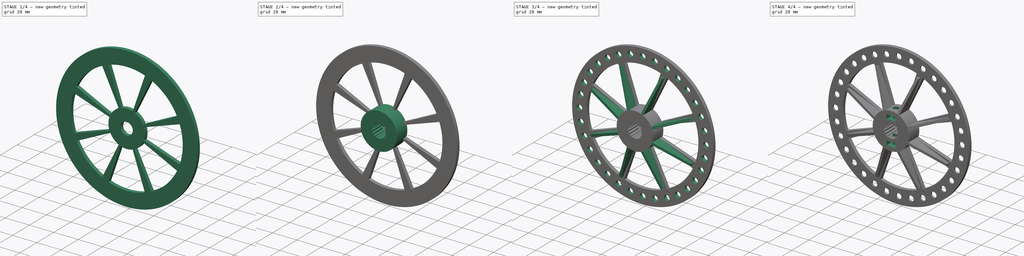
[diagram: build sequence overview — one tinted view per stage of 4, left to right]
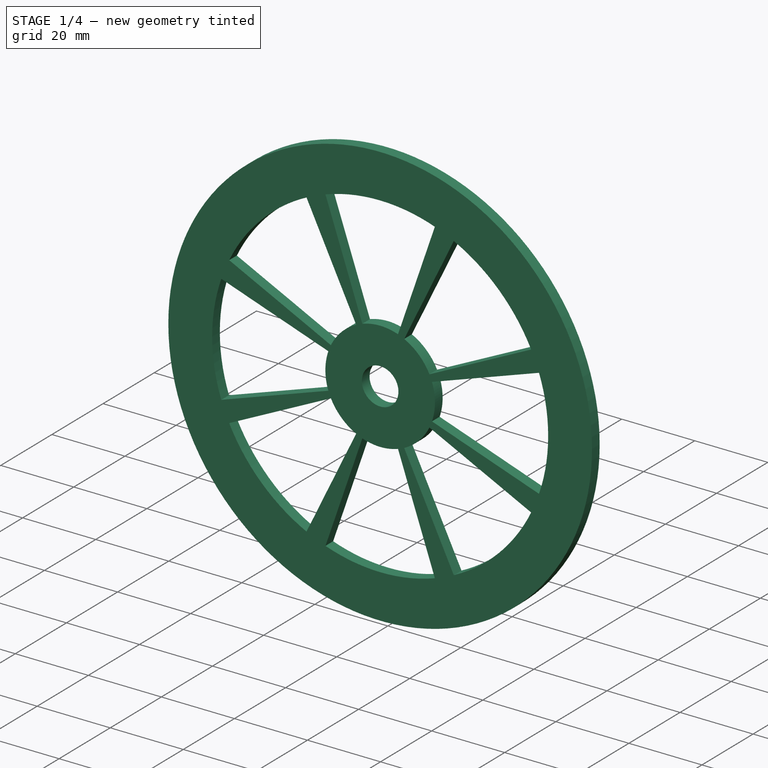
[diagram: stage 1 of 4 — iso view after this stage's code; geometry added in this stage tinted green]
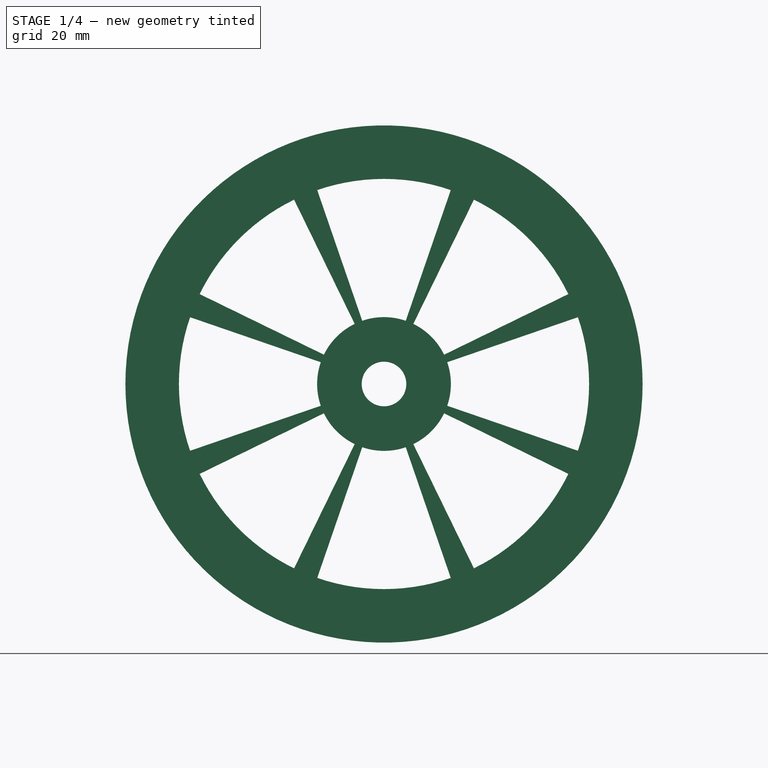
[diagram: stage 1 of 4 — front view after this stage's code; geometry added in this stage tinted green]
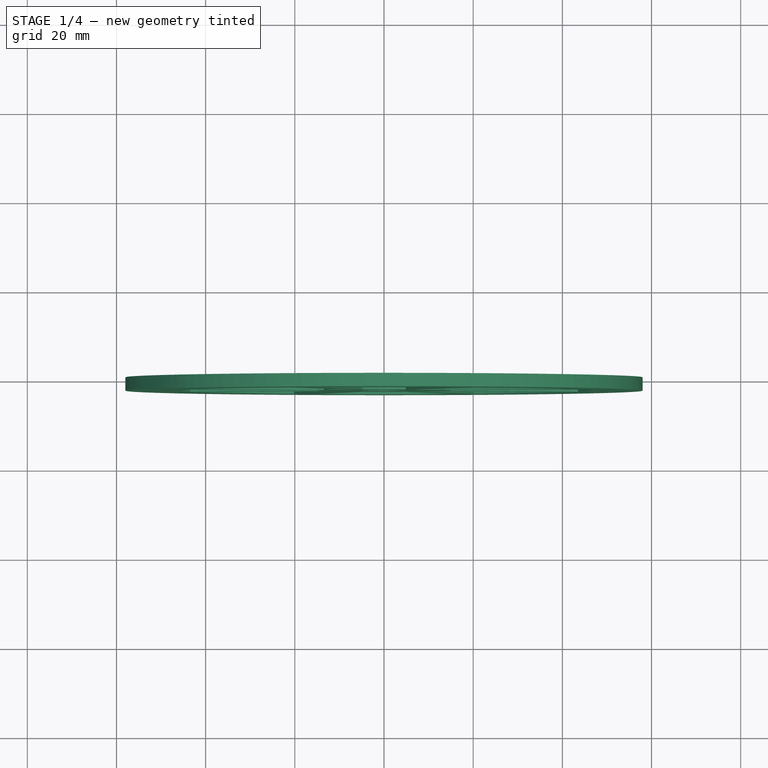
[diagram: stage 1 of 4 — top view after this stage's code; geometry added in this stage tinted green]
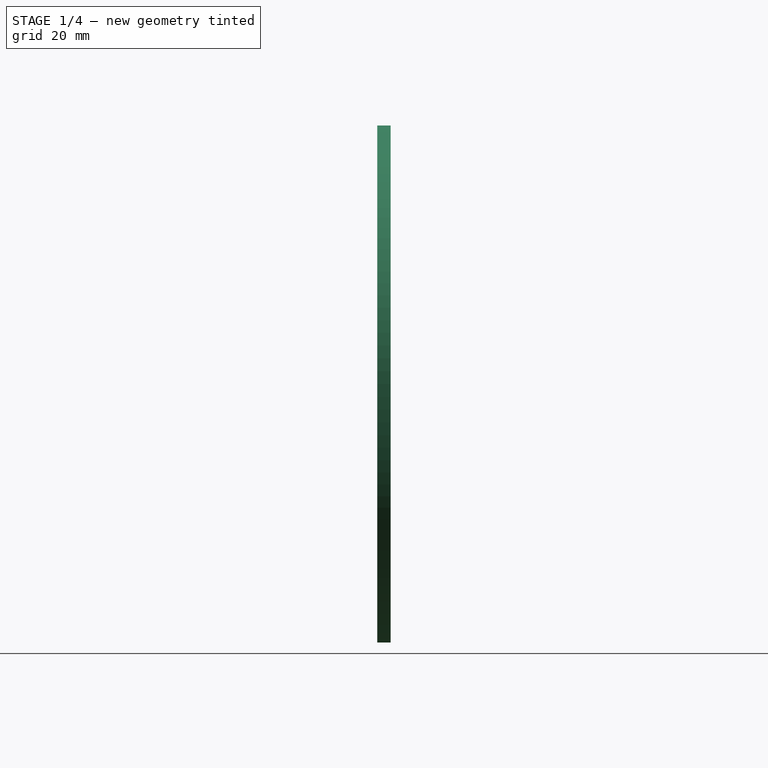
[diagram: stage 1 of 4 — right view after this stage's code; geometry added in this stage tinted green]
FCSTD DOCUMENT  (FreeCAD 1.0R38641 +678 (Git))
Label: pendulum_Reaction_Wheel
License: All rights reserved
LicenseURL: https://en.wikipedia.org/wiki/All_rights_reserved
objects: Sketcher::SketchObject×8, PartDesign::Pocket×5, PartDesign::PolarPattern×4, PartDesign::Pad×3, App::Part×1, PartDesign::Chamfer×1, PartDesign::CoordinateSystem×1, PartDesign::Body×1
note: 53 computed .brp shape members not serialized (recipe doc carries the construction recipe); baked Part::Feature solids carry a one-line shape summary decoded from their .brp

FEATURE [App::Part] Part
  Origin = -> Origin
FEATURE [Sketcher::SketchObject] Sketch008
  ArcFitTolerance = 1e-06
  AttachmentSupport = -> [XZ_Plane005]
  FullyConstrained = true
  MakeInternals = false
  MapMode = 5
  Placement = pos=(0,0,0) rot=(1,0,0;1.5708rad)
  sketch-geometry (8):
    g0: LineSegment StartX=-3.7 StartY=11.6 StartZ=0 EndX=-3.7 EndY=8 EndZ=0
    g1: LineSegment StartX=-3.7 StartY=8 StartZ=0 EndX=3.7 EndY=8 EndZ=0
    g2: LineSegment StartX=3.7 StartY=8 StartZ=0 EndX=3.7 EndY=11.6 EndZ=0
    g3: LineSegment StartX=3.7 StartY=11.6 StartZ=0 EndX=-3.7 EndY=11.6 EndZ=0
    g4: LineSegment StartX=-3.7 StartY=-8 StartZ=0 EndX=-3.7 EndY=-11.6 EndZ=0
    g5: LineSegment StartX=-3.7 StartY=-11.6 StartZ=0 EndX=3.7 EndY=-11.6 EndZ=0
    g6: LineSegment StartX=3.7 StartY=-11.6 StartZ=0 EndX=3.7 EndY=-8 EndZ=0
    g7: LineSegment StartX=3.7 StartY=-8 StartZ=0 EndX=-3.7 EndY=-8 EndZ=0
  constraints (21):
    c: Coincident(g0,g1)
    c: Coincident(g1,g2)
    c: Coincident(g2,g3)
    c: Coincident(g3,g0)
    c: Vertical(g0)
    c: Vertical(g2)
    c: Coincident(g4,g5)
    c: Coincident(g5,g6)
    c: Coincident(g6,g7)
    c: Coincident(g7,g4)
    c: Vertical(g4)
    c: Vertical(g6)
    c: Horizontal(g5)
    c: Horizontal(g7)
    c: Symmetric(g0,g6,g-1)
    c: DistanceY(g-1,g1) = 8
    c: DistanceY(g2,g2) = 3.6
    c: DistanceX(g3,g3) = 7.4
    c: Symmetric(g2,g4,g-1)
    c: Symmetric(g1,g0,g-2)
    c: Horizontal(g3)
FEATURE [Sketcher::SketchObject] Sketch009
  ArcFitTolerance = 1e-06
  AttachmentSupport = -> [XY_Plane005]
  FullyConstrained = true
  MakeInternals = false
  MapMode = 5
  sketch-geometry (1):
    g0: Circle CenterX=0 CenterY=-6 CenterZ=0 NormalX=0 NormalY=0 NormalZ=1 AngleXU=0 Radius=2.25
  constraints (3):
    c: PointOnObject(g0,g-2)
    c: Diameter(g0) = 4.5
    c: DistanceY(g0,g-1) = 6
FEATURE [Sketcher::SketchObject] Sketch010
  ArcFitTolerance = 1e-06
  AttachmentOffset = pos=(0,0,0) rot=(1,0,0;0.392699rad)
  AttachmentSupport = -> [YZ_Plane005]
  FullyConstrained = true
  MakeInternals = false
  MapMode = 5
  Placement = pos=(0,0,0) rot=(0.639338,0.639338,0.427192;2.33414rad)
  sketch-geometry (4):
    g0: LineSegment StartX=-3 StartY=14.5 StartZ=0 EndX=-12 EndY=14.5 EndZ=0
    g1: LineSegment StartX=-12 StartY=14.5 StartZ=0 EndX=-5 EndY=44.5 EndZ=0
    g2: LineSegment StartX=-5 StartY=44.5 StartZ=0 EndX=-3 EndY=44.5 EndZ=0
    g3: LineSegment StartX=-3 StartY=44.5 StartZ=0 EndX=-3 EndY=14.5 EndZ=0
  constraints (12):
    c: Coincident(g0,g1)
    c: Coincident(g1,g2)
    c: Horizontal(g2)
    c: Coincident(g2,g3)
    c: Coincident(g3,g0)
    c: Horizontal(g0)
    c: Vertical(g3)
    c: DistanceX(g0,g-1) = 3
    c: DistanceY(g-1,g0) = 14.5
    c: DistanceY(g3,g3) = 30
    c: DistanceX(g2,g2) = 2
    c: DistanceX(g0,g0) = 9
FEATURE [Sketcher::SketchObject] Sketch011
  ArcFitTolerance = 1e-06
  AttachmentSupport = -> [XZ_Plane005]
  FullyConstrained = true
  MakeInternals = false
  MapMode = 5
  Placement = pos=(0,0,0) rot=(1,0,0;1.5708rad)
  sketch-geometry (1):
    g0: Circle CenterX=0 CenterY=52 CenterZ=0 NormalX=0 NormalY=0 NormalZ=1 AngleXU=0 Radius=2.3
  constraints (3):
    c: PointOnObject(g0,g-2)
    c: Diameter(g0) = 4.6
    c: DistanceY(g-1,g0) = 52
FEATURE [Sketcher::SketchObject] Sketch012
  ArcFitTolerance = 1e-06
  AttachmentSupport = -> [XZ_Plane005]
  FullyConstrained = true
  MakeInternals = false
  MapMode = 5
  Placement = pos=(0,0,0) rot=(1,0,0;1.5708rad)
  sketch-geometry (5):
    g0: LineSegment StartX=0 StartY=0 StartZ=0 EndX=-1.04189 EndY=5.90885 EndZ=0
    g1: LineSegment StartX=-1.04189 StartY=5.90885 StartZ=0 EndX=-0.2 EndY=5.3692 EndZ=0
    g2: LineSegment StartX=-0.2 StartY=5.3692 StartZ=0 EndX=0.2 EndY=5.3692 EndZ=0
    g3: LineSegment StartX=0.2 StartY=5.3692 StartZ=0 EndX=1.04189 EndY=5.90885 EndZ=0
    g4: LineSegment StartX=1.04189 StartY=5.90885 StartZ=0 EndX=0 EndY=0 EndZ=0
  constraints (13):
    c: Coincident(g-1,g0)
    c: Coincident(g0,g1)
    c: Coincident(g1,g2)
    c: Horizontal(g2)
    c: Coincident(g2,g3)
    c: Coincident(g3,g4)
    c: Coincident(g4,g0)
    c: Symmetric(g3,g0,g-2)
    c: Angle(g4,g0) = 0.349066
    c: DistanceX(g2,g2) = 0.4
    c: Distance(g4) = 6
    c: Distance(g3) = 1
    c: Distance(g1) = 1
FEATURE [Sketcher::SketchObject] Sketch013
  ArcFitTolerance = 1e-06
  AttachmentSupport = -> [XZ_Plane005]
  FullyConstrained = true
  MakeInternals = false
  MapMode = 5
  Placement = pos=(0,0,0) rot=(1,0,0;1.5708rad)
  sketch-geometry (2):
    g0: Circle CenterX=0 CenterY=0 CenterZ=0 NormalX=0 NormalY=0 NormalZ=1 AngleXU=0 Radius=5
    g1: Circle CenterX=0 CenterY=0 CenterZ=0 NormalX=0 NormalY=0 NormalZ=1 AngleXU=0 Radius=15
  constraints (4):
    c: Coincident(g0,g-1)
    c: Coincident(g1,g0)
    c: Diameter(g1) = 30
    c: Diameter(g0) = 10
FEATURE [Sketcher::SketchObject] Sketch014
  ArcFitTolerance = 1e-06
  AttachmentSupport = -> [XZ_Plane005]
  FullyConstrained = true
  MakeInternals = false
  MapMode = 5
  Placement = pos=(0,0,0) rot=(1,0,0;1.5708rad)
  sketch-geometry (6):
    g0: ArcOfCircle CenterX=0 CenterY=0 CenterZ=0 NormalX=0 NormalY=0 NormalZ=1 AngleXU=0 Radius=15 StartAngle=1.23918 EndAngle=1.90241
    g1: ArcOfCircle CenterX=0 CenterY=0 CenterZ=0 NormalX=0 NormalY=0 NormalZ=1 AngleXU=0 Radius=46 StartAngle=1.23918 EndAngle=1.90241
    g2: LineSegment [constr] StartX=0 StartY=0 StartZ=0 EndX=-19.5341 EndY=56.7311 EndZ=0
    g3: LineSegment [constr] StartX=0 StartY=0 StartZ=0 EndX=19.5341 EndY=56.7311 EndZ=0
    g4: LineSegment StartX=-4.88352 StartY=14.1828 StartZ=0 EndX=-14.9761 EndY=43.4939 EndZ=0
    g5: LineSegment StartX=14.9761 StartY=43.4939 StartZ=0 EndX=4.88352 EndY=14.1828 EndZ=0
  constraints (17):
    c: Coincident(g0,g-1)
    c: Coincident(g1,g0)
    c: Coincident(g2,g0)
    c: Coincident(g3,g0)
    c: Coincident(g4,g0)
    c: Coincident(g4,g1)
    c: Coincident(g5,g1)
    c: Coincident(g5,g0)
    c: Symmetric(g2,g3,g-2)
    c: Angle(g3,g2) = 0.663225
    c: PointOnObject(g0,g3)
    c: PointOnObject(g1,g3)
    c: PointOnObject(g0,g2)
    c: PointOnObject(g1,g2)
    c: Diameter(g1) = 92
    c: Diameter(g0) = 30
    c: Distance(g3) = 60
FEATURE [Sketcher::SketchObject] Sketch015
  ArcFitTolerance = 1e-06
  AttachmentSupport = -> [XZ_Plane005]
  FullyConstrained = true
  MakeInternals = false
  MapMode = 5
  Placement = pos=(0,0,0) rot=(1,0,0;1.5708rad)
  sketch-geometry (2):
    g0: Circle CenterX=0 CenterY=0 CenterZ=0 NormalX=0 NormalY=0 NormalZ=1 AngleXU=0 Radius=58
    g1: Circle CenterX=0 CenterY=0 CenterZ=0 NormalX=0 NormalY=0 NormalZ=1 AngleXU=0 Radius=5
  constraints (4):
    c: Coincident(g0,g-1)
    c: Diameter(g0) = 116
    c: Coincident(g1,g0)
    c: Diameter(g1) = 10
FEATURE [PartDesign::Pad] Pad005  label="Pad_External"
  Direction = (0,-1,2e-16)
  Length = 3
  Length2 = 10
  Placement = pos=(0,0,0) rot=(1,0,0;1.5708rad)
  Profile = -> Sketch015
  ReferenceAxis = -> Sketch015 [N_Axis]
  Refine = true
  Suppressed = false
  Type = 0
FEATURE [PartDesign::Pocket] Pocket002  label="Pocket_Gap"
  BaseFeature = -> Pad005
  Direction = (0,1,-2e-16)
  Length = 5
  Length2 = 5
  Placement = pos=(0,0,0) rot=(1,0,0;1.5708rad)
  Profile = -> Sketch014
  ReferenceAxis = -> Sketch014 [N_Axis]
  Refine = true
  Reversed = true
  Suppressed = false
  Type = 0
FEATURE [PartDesign::PolarPattern] PolarPattern  label="PolarPattern_Gaps"
  Angle = 360
  Axis = -> Sketch014 [N_Axis]
  BaseFeature = -> Pocket002
  Mode = 0
  Occurrences = 8
  Offset = 120
  Originals = -> [Pocket002]
  Placement = pos=(0,0,0) rot=(1,0,0;1.5708rad)
  Refine = true
  Suppressed = false
  TransformMode = 0
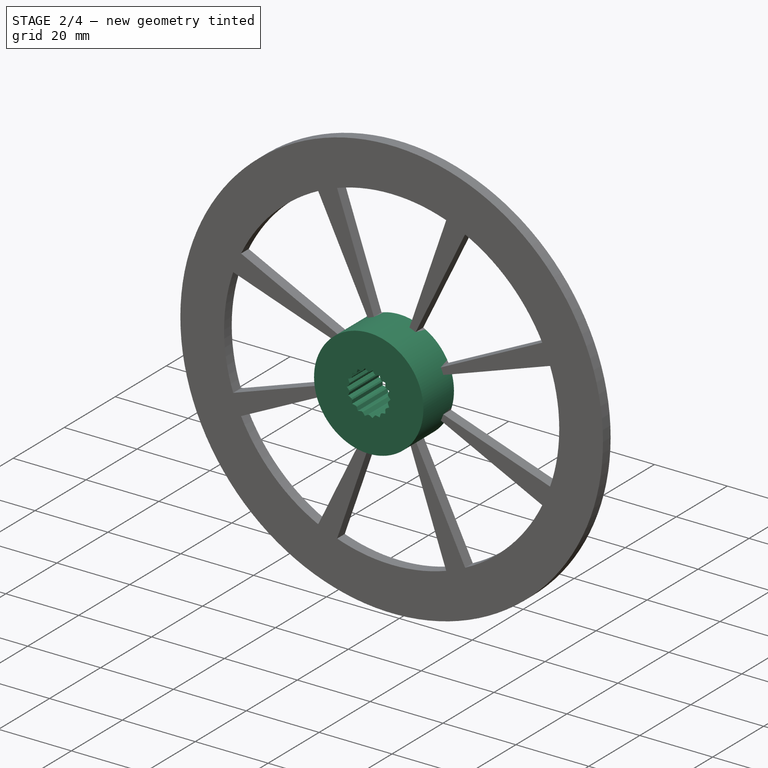
[diagram: stage 2 of 4 — iso view after this stage's code; geometry added in this stage tinted green]
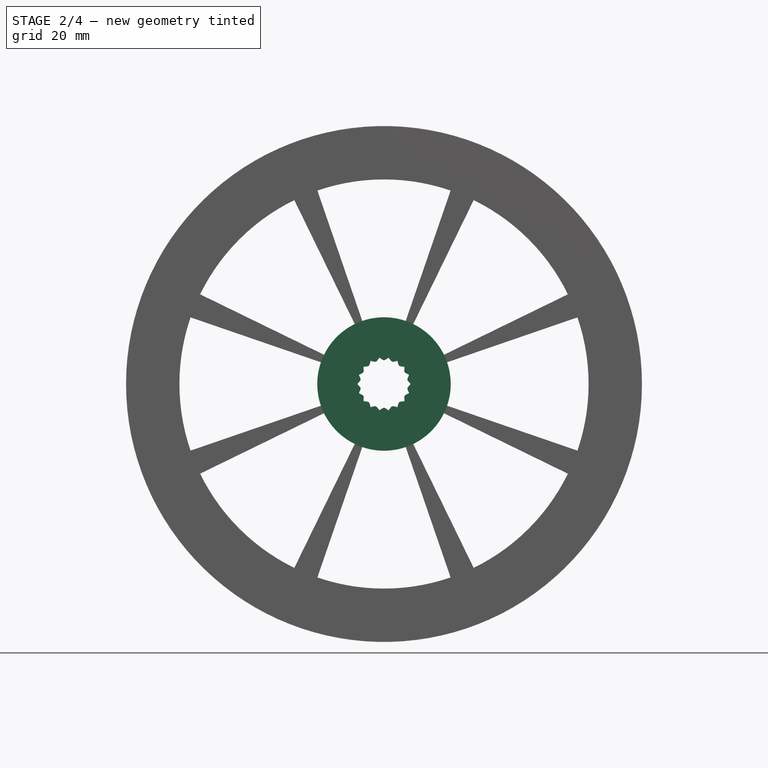
[diagram: stage 2 of 4 — front view after this stage's code; geometry added in this stage tinted green]
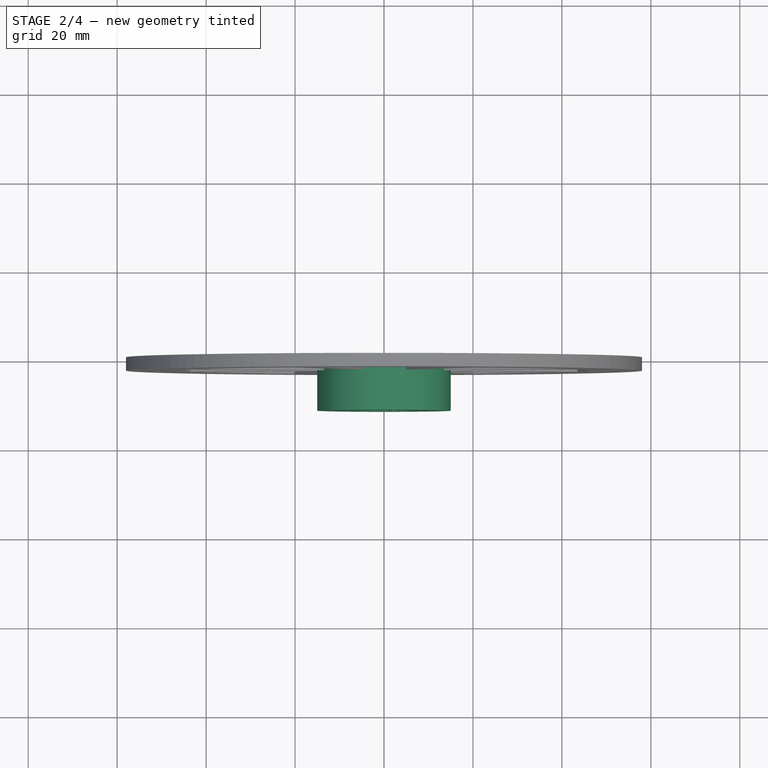
[diagram: stage 2 of 4 — top view after this stage's code; geometry added in this stage tinted green]
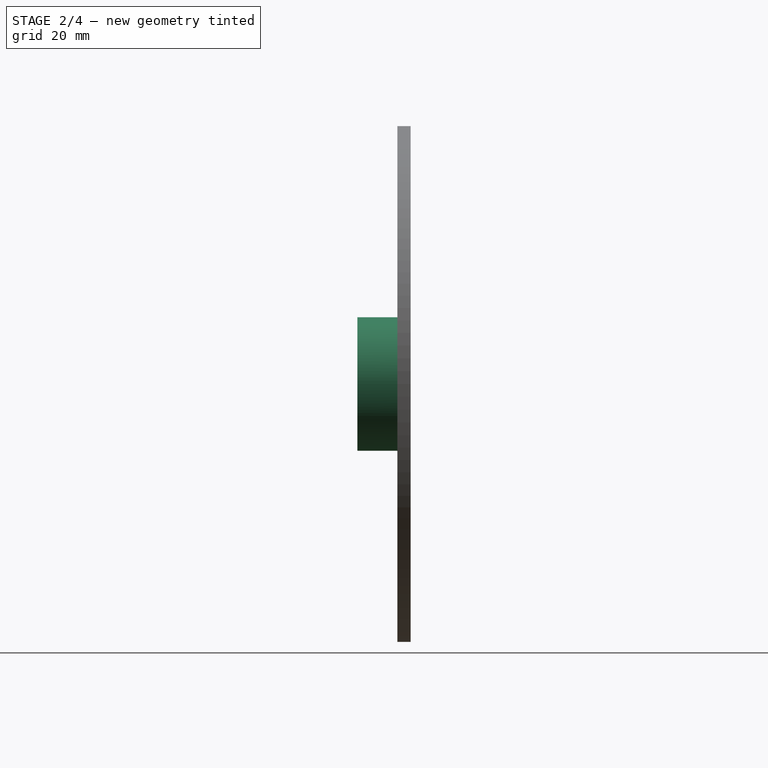
[diagram: stage 2 of 4 — right view after this stage's code; geometry added in this stage tinted green]
FEATURE [PartDesign::Pad] Pad006  label="Pad_Center"
  BaseFeature = -> PolarPattern
  Direction = (0,-1,2e-16)
  Length = 12
  Length2 = 10
  Placement = pos=(0,0,0) rot=(1,0,0;1.5708rad)
  Profile = -> Sketch013
  ReferenceAxis = -> Sketch013 [N_Axis]
  Refine = true
  Suppressed = false
  Type = 0
FEATURE [PartDesign::Pocket] Pocket003  label="Pocket_Shaft"
  BaseFeature = -> Pad006
  Direction = (0,1,-2e-16)
  Length = 5
  Length2 = 5
  Placement = pos=(0,0,0) rot=(1,0,0;1.5708rad)
  Profile = -> Sketch012
  ReferenceAxis = -> Sketch012 [N_Axis]
  Refine = true
  Reversed = true
  Suppressed = false
  Type = 1
FEATURE [PartDesign::PolarPattern] PolarPattern001  label="PolarPattern_DriveShaft"
  Angle = 360
  Axis = -> Sketch012 [N_Axis]
  BaseFeature = -> Pocket003
  Mode = 0
  Occurrences = 18
  Offset = 120
  Originals = -> [Pocket003]
  Placement = pos=(0,0,0) rot=(1,0,0;1.5708rad)
  Refine = true
  Suppressed = false
  TransformMode = 0
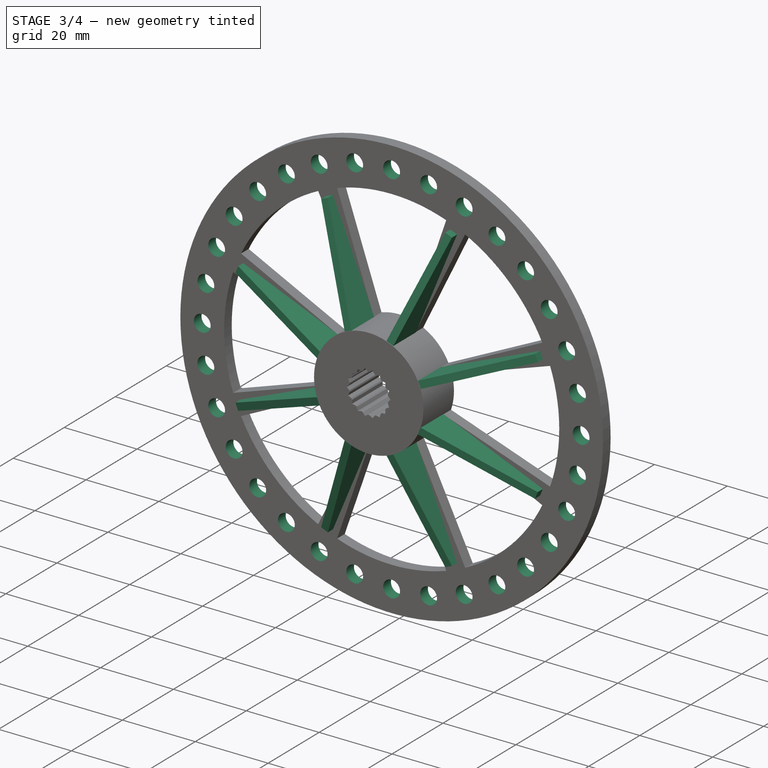
[diagram: stage 3 of 4 — iso view after this stage's code; geometry added in this stage tinted green]
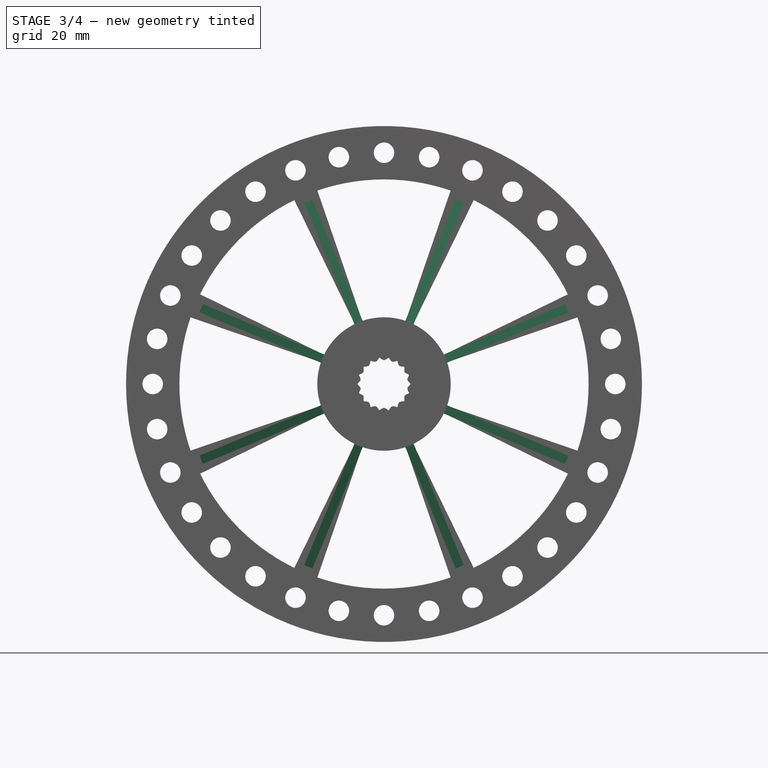
[diagram: stage 3 of 4 — front view after this stage's code; geometry added in this stage tinted green]
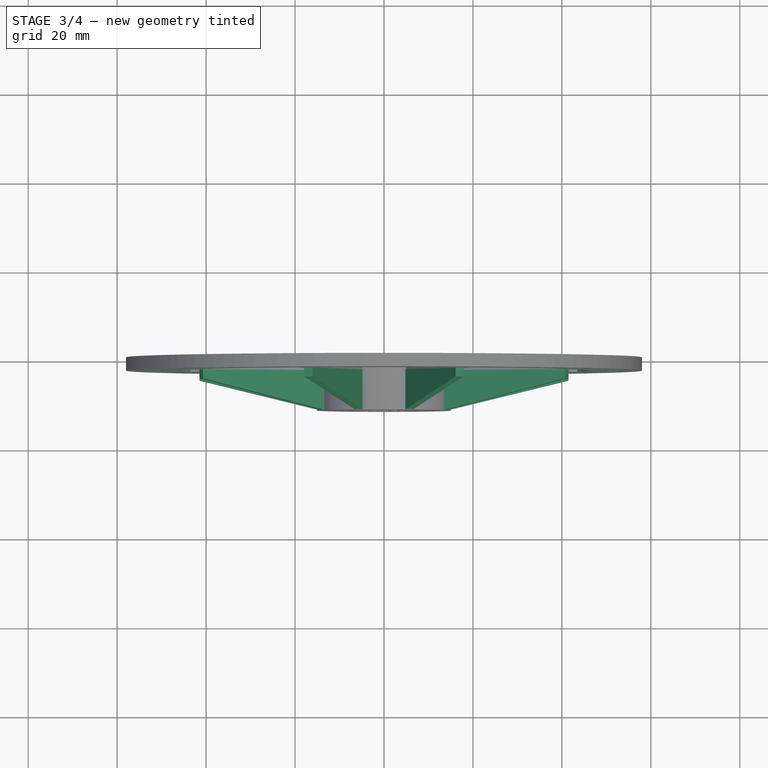
[diagram: stage 3 of 4 — top view after this stage's code; geometry added in this stage tinted green]
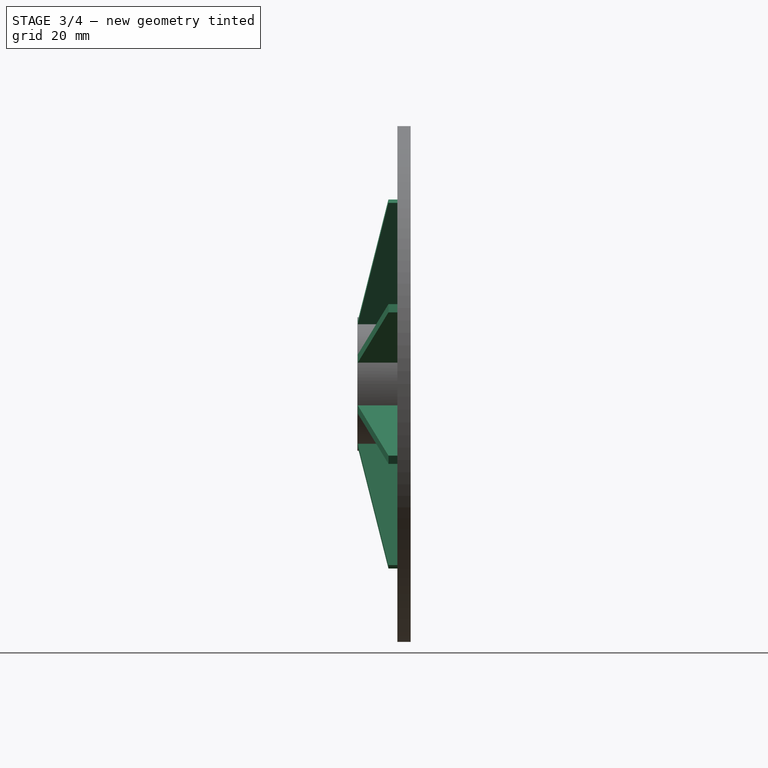
[diagram: stage 3 of 4 — right view after this stage's code; geometry added in this stage tinted green]
FEATURE [PartDesign::Pocket] Pocket004  label="Pocket_Screw"
  BaseFeature = -> PolarPattern001
  Direction = (0,1,-2e-16)
  Length = 5
  Length2 = 5
  Placement = pos=(0,0,0) rot=(1,0,0;1.5708rad)
  Profile = -> Sketch011
  ReferenceAxis = -> Sketch011 [N_Axis]
  Refine = true
  Reversed = true
  Suppressed = false
  Type = 1
FEATURE [PartDesign::PolarPattern] PolarPattern002  label="PolarPattern_Inertia"
  Angle = 360
  Axis = -> Sketch011 [N_Axis]
  BaseFeature = -> Pocket004
  Mode = 0
  Occurrences = 32
  Offset = 120
  Originals = -> [Pocket004]
  Placement = pos=(0,0,0) rot=(1,0,0;1.5708rad)
  Refine = true
  Suppressed = false
  TransformMode = 0
FEATURE [PartDesign::Pad] Pad007  label="Pad_Reinforcement"
  BaseFeature = -> PolarPattern002
  Direction = (0.92388,0,-0.382683)
  Length = 2
  Length2 = 10
  Midplane = true
  Placement = pos=(0,0,0) rot=(1,0,0;1.5708rad)
  Profile = -> Sketch010
  ReferenceAxis = -> Sketch010 [N_Axis]
  Refine = true
  Suppressed = false
  Type = 0
FEATURE [PartDesign::PolarPattern] PolarPattern003  label="PolarPattern_Reinforcements"
  Angle = 360
  Axis = -> Y_Axis005
  BaseFeature = -> Pad007
  Mode = 0
  Occurrences = 8
  Offset = 120
  Originals = -> [Pad007]
  Placement = pos=(0,0,0) rot=(1,0,0;1.5708rad)
  Refine = true
  Suppressed = false
  TransformMode = 0
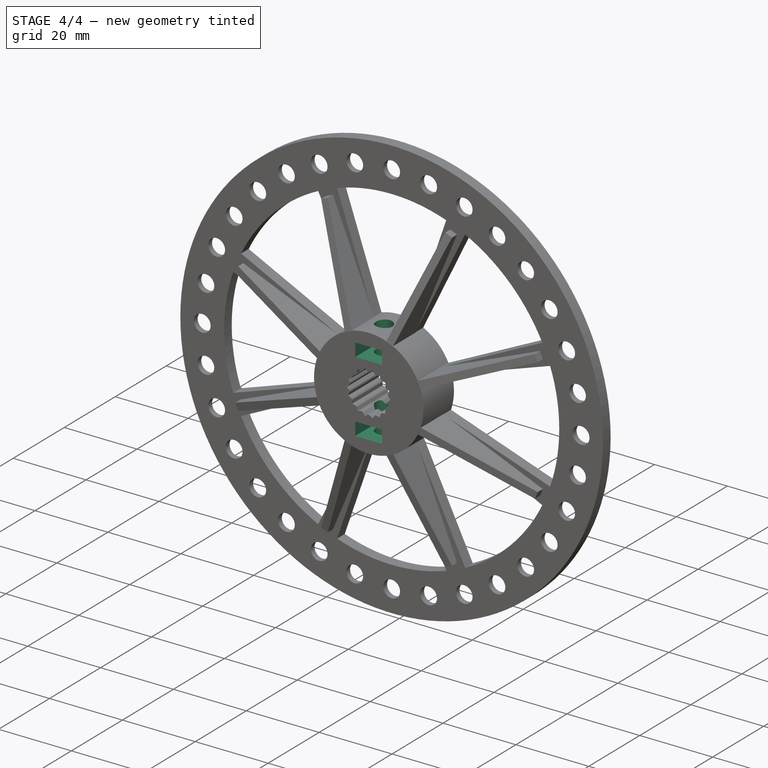
[diagram: stage 4 of 4 — iso view after this stage's code; geometry added in this stage tinted green]
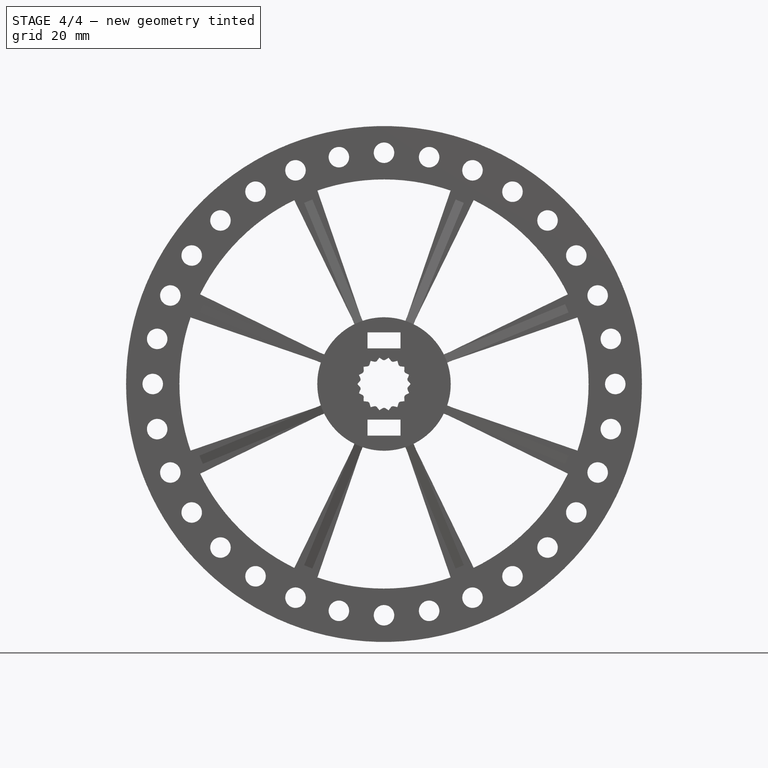
[diagram: stage 4 of 4 — front view after this stage's code; geometry added in this stage tinted green]
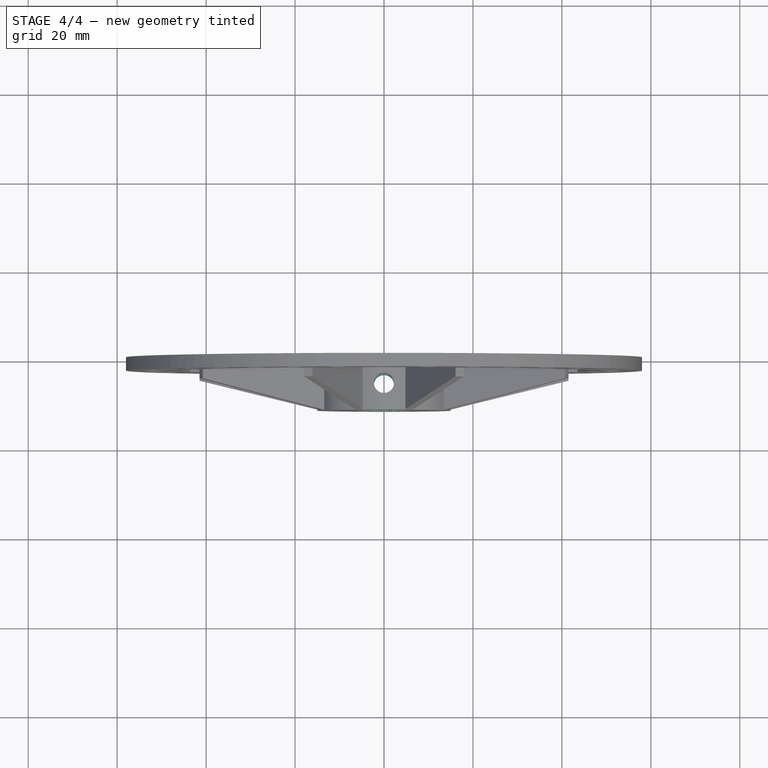
[diagram: stage 4 of 4 — top view after this stage's code; geometry added in this stage tinted green]
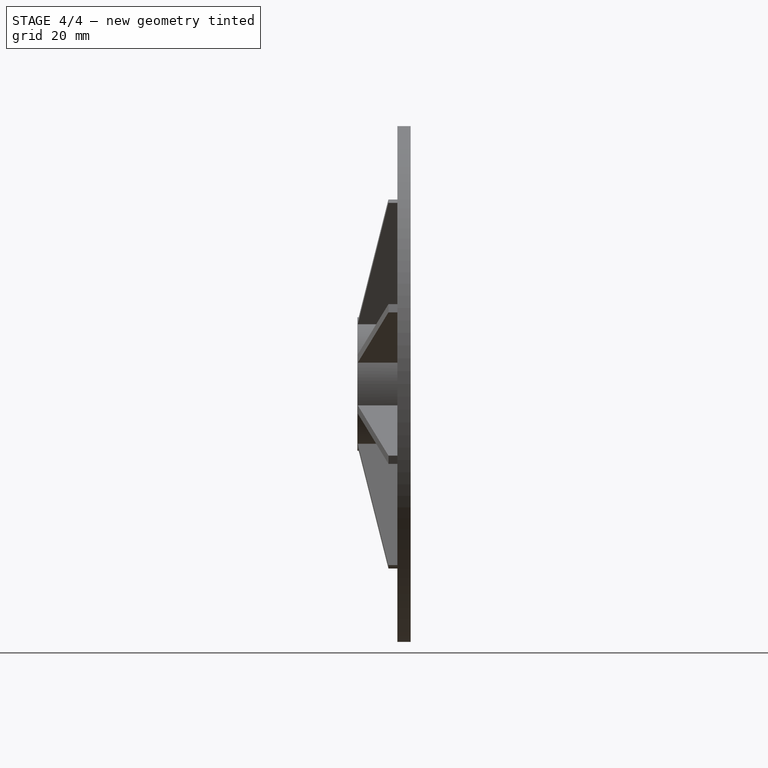
[diagram: stage 4 of 4 — right view after this stage's code; geometry added in this stage tinted green]
FEATURE [PartDesign::Pocket] Pocket005  label="Pocket_Fixation"
  BaseFeature = -> PolarPattern003
  Direction = (0,0,-1)
  Length = 30
  Length2 = 5
  Midplane = true
  Placement = pos=(0,0,0) rot=(1,0,0;1.5708rad)
  Profile = -> Sketch009
  ReferenceAxis = -> Sketch009 [N_Axis]
  Refine = true
  Suppressed = false
  Type = 0
FEATURE [PartDesign::Pocket] Pocket006  label="Pocket_Bolts"
  BaseFeature = -> Pocket005
  Direction = (0,1,-2e-16)
  Length = 12
  Length2 = 5
  Placement = pos=(0,0,0) rot=(1,0,0;1.5708rad)
  Profile = -> Sketch008
  ReferenceAxis = -> Sketch008 [N_Axis]
  Refine = true
  Reversed = true
  Suppressed = false
  Type = 0
FEATURE [PartDesign::Chamfer] Chamfer001
  Angle = 45
  Base = -> Pocket006 [Edge108,Edge103,Edge102,Edge101,Edge38,Edge33,Edge32,Edge10,Edge9,Edge5,Edge6,Edge4,Edge7,Edge8,Edge15,Edge16,Edge17,Edge23,Edge24,Edge25,Edge30,Edge31,Edge123,Edge124,Edge125,Edge129,Edge128,Edge130,Edge127,Edge126,Edge110,Edge109]
  BaseFeature = -> Pocket006
  ChamferType = 0
  FlipDirection = true
  Placement = pos=(0,0,0) rot=(1,0,0;1.5708rad)
  Refine = true
  Size = 1.5
  Size2 = 1
  SupportTransform = false
  Suppressed = false
  UseAllEdges = false
FEATURE [PartDesign::CoordinateSystem] reactionWheel
  AttacherType = Attacher::AttachEngine3D
  AttachmentOffset = pos=(0,0,0) rot=(-0.57735,0.57735,-0.57735;2.0944rad)
  AttachmentSupport = -> [Chamfer001]
  MapMode = 11
  Placement = pos=(0,-12,5.3e-15) rot=(0,0,1;0rad)
FEATURE [PartDesign::Body] Body004  label="Body_ReactionWheel"
  AllowCompound = false
  Group = -> [Sketch015,Pad005,Sketch014,Pocket002,PolarPattern,Sketch013,Pad006,Sketch012,Pocket003,PolarPattern001,Sketch011,Pocket004,PolarPattern002,Sketch010,Pad007,PolarPattern003,Sketch009,Pocket005,Sketch008,Pocket006,reactionWheel,Chamfer001]
  Origin = -> Origin005
  Tip = -> Chamfer001
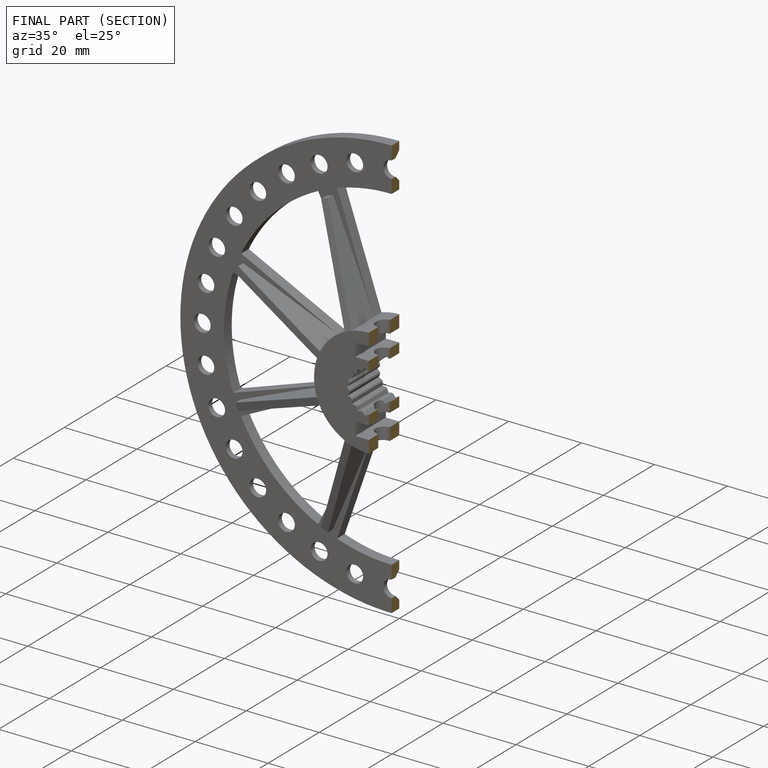
[diagram: finished part — half-section view (interior)]
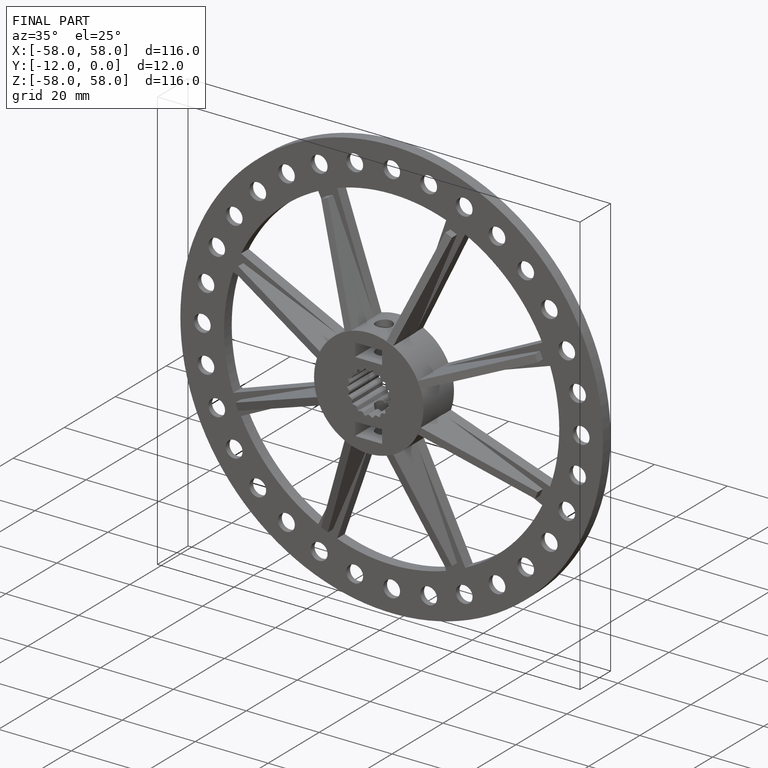
[diagram: finished part — iso view with bounding-box wireframe]
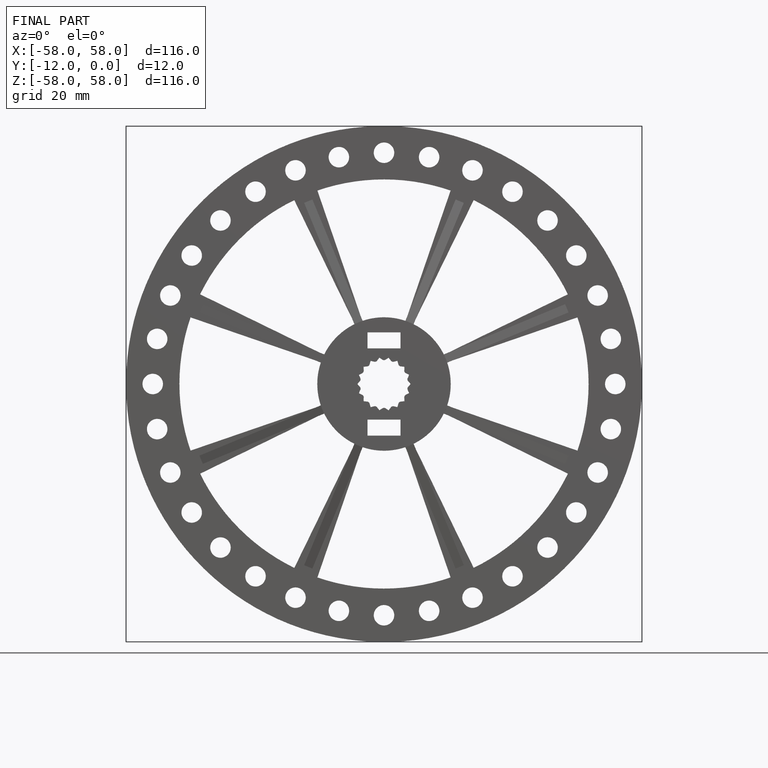
[diagram: finished part — front view with bounding-box wireframe]
